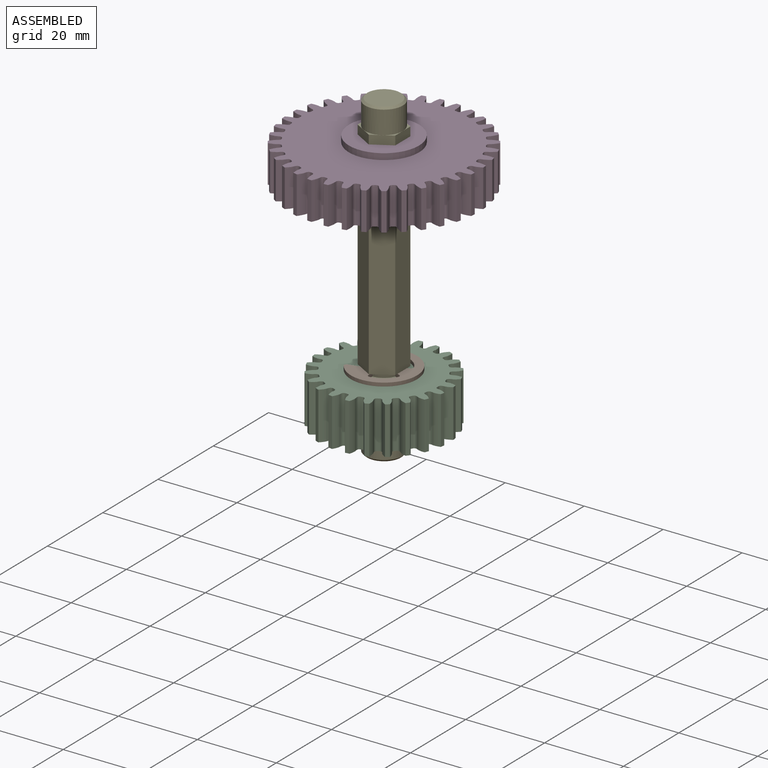
[diagram: assembled view]
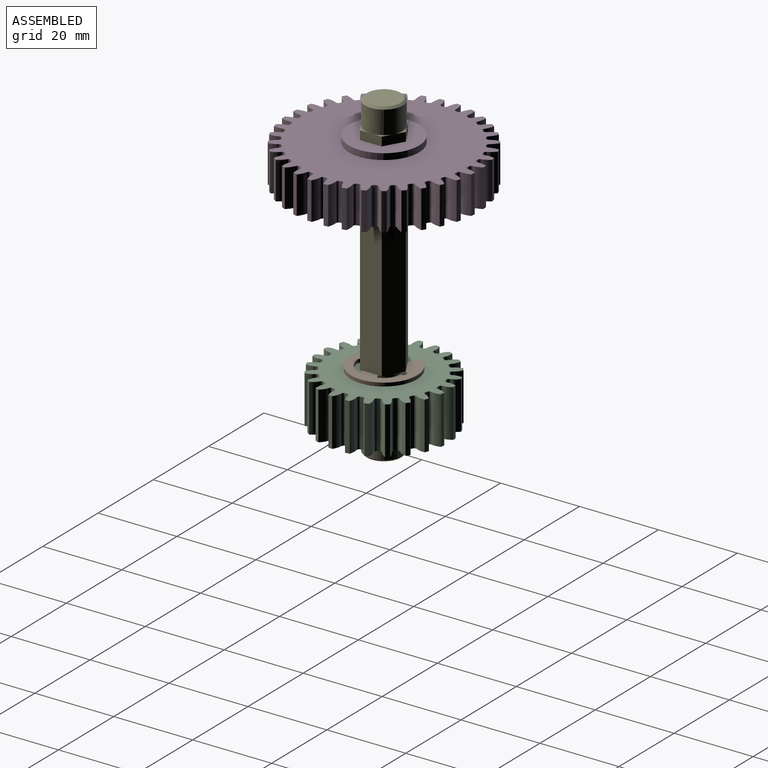
[diagram: assembled view, second angle]
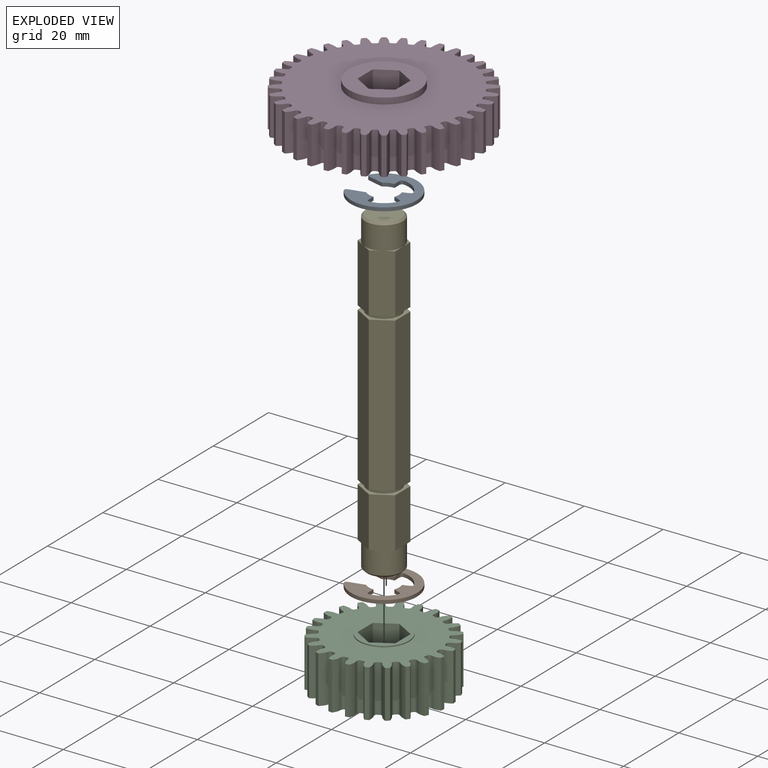
[diagram: exploded view]
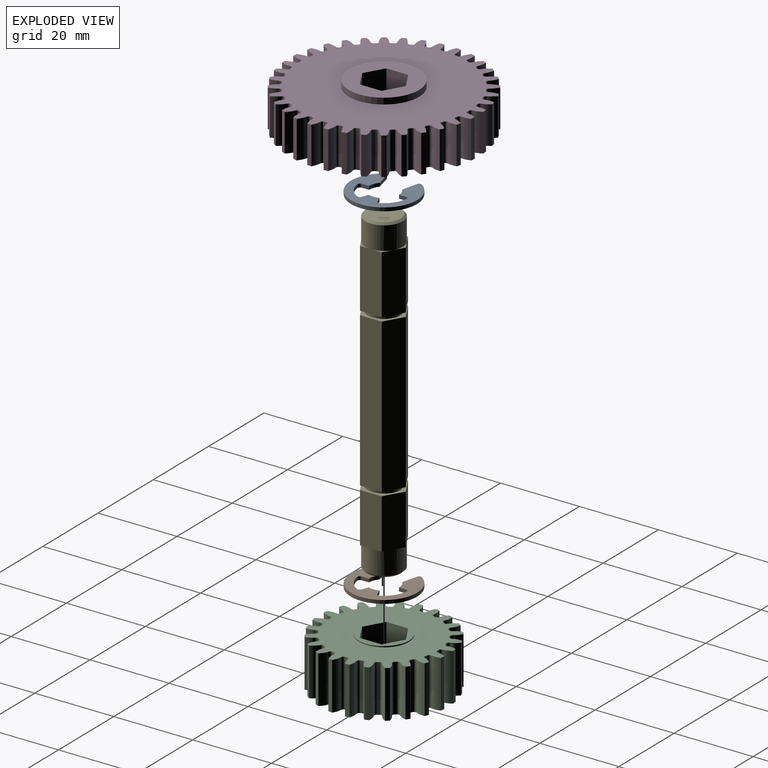
[diagram: exploded view, second angle]
ASSEMBLY  parts=5 mates=4
PART A: 20 faces, bbox 0.9x16.8x15.4 mm
  f0: cylinder r=0.62mm len=0.96mm, axis (-1,0,0), area 1.1mm2, adj f2,f3,f14,f15
  f1: cylinder r=0.62mm len=0.96mm, axis (-1,0,0), area 1.1mm2, adj f2,f13,f14,f15
  f2: cylinder r=8.38mm len=16.76mm, axis (-1,0,0), area 37.7mm2, adj f0,f1,f14,f15
  f3: plane 3.99x0.99mm, normal (0,-0.97,0.24), area 3.7mm2, adj f0,f4,f14,f15
  f4: cylinder r=3.81mm len=2.52mm, axis (-1,0,0), area 2.4mm2, adj f3,f5,f14,f15
  f5: plane 1.83x0.89mm, normal (0,0,-1), area 1.6mm2, adj f4,f14,f15,f17
  f6: cylinder r=6.29mm len=4.92mm, axis (-1,0,0), area 5.5mm2, adj f14,f15,f17,f19
  f7: plane 1.71x0.89mm, normal (0,0.94,0.35), area 1.6mm2, adj f8,f14,f15,f19
  f8: cylinder r=3.81mm len=2.69mm, axis (-1,0,0), area 2.4mm2, adj f7,f9,f14,f15
  f9: plane 1.71x0.89mm, normal (0,-0.94,0.35), area 1.6mm2, adj f8,f14,f15,f18
  f10: cylinder r=6.29mm len=4.92mm, axis (-1,0,0), area 5.5mm2, adj f14,f15,f16,f18
  f11: plane 1.83x0.89mm, normal (0,0,-1), area 1.6mm2, adj f12,f14,f15,f16
  f12: cylinder r=3.81mm len=2.52mm, axis (-1,0,0), area 2.4mm2, adj f11,f13,f14,f15
  f13: plane 3.99x0.99mm, normal (0,0.97,0.24), area 3.7mm2, adj f1,f12,f14,f15
  f14: plane 16.76x15.36mm, normal (1,0,0), area 110.9mm2, adj f0,f1,f2,f3,f4,f5,f6,f7
  f15: plane 16.76x15.36mm, normal (-1,0,0), area 110.9mm2, adj f0,f1,f2,f3,f4,f5,f6,f7
  f16: cylinder r=0.62mm len=0.89mm, axis (-1,0,0), area 0.9mm2, adj f10,f11,f14,f15
  f17: cylinder r=0.62mm len=0.89mm, axis (-1,0,0), area 0.9mm2, adj f5,f6,f14,f15
  f18: cylinder r=0.62mm len=0.89mm, axis (-1,0,0), area 0.9mm2, adj f9,f10,f14,f15
  f19: cylinder r=0.62mm len=0.89mm, axis (-1,0,0), area 0.9mm2, adj f6,f7,f14,f15
PART B: same geometry as A
PART C: 60 faces, bbox 33x12.8x33 mm
  f0: cylinder r=6.35mm len=12.7mm, axis (0,1,0), area 11.7mm2, adj f2,f11
  f1: cylinder r=6.35mm len=12.7mm, axis (0,1,0), area 11.7mm2, adj f3,f10
  f2: plane 12.7x12.7mm, normal (0,1,0), area 46.8mm2, adj f0,f4,f5,f6,f7,f8,f9
  f3: plane 12.7x12.7mm, normal (0,-1,0), area 46.8mm2, adj f1,f4,f5,f6,f7,f8,f9
  f4: plane 12.65x5.54mm, normal (1,0,0), area 70.1mm2, adj f2,f3,f5,f9
  f5: plane 12.65x4.8mm, normal (0.5,0,0.87), area 70.1mm2, adj f2,f3,f4,f6
  f6: plane 12.65x4.8mm, normal (-0.5,0,0.87), area 70.1mm2, adj f2,f3,f5,f7
  f7: plane 12.65x5.54mm, normal (-1,0,0), area 70.1mm2, adj f2,f3,f6,f8
  f8: plane 12.65x4.8mm, normal (-0.5,0,-0.87), area 70.1mm2, adj f2,f3,f7,f9
  f9: plane 12.65x4.8mm, normal (0.5,0,-0.87), area 70.1mm2, adj f2,f3,f4,f8
  f10: plane 32.97x32.97mm, normal (0,-1,0), area 577.9mm2, adj f1,f12,f13,f14,f15,f16,f17,f18
  f11: plane 32.97x32.97mm, normal (0,1,0), area 577.9mm2, adj f0,f12,f13,f14,f15,f16,f17,f18
  f12: cylinder r=16.51mm len=12.07mm, axis (0,-1,0), area 12.6mm2, adj f10,f11,f13,f59
  f13: extruded ~12.07x3.27mm, area 85.3mm2, adj f10,f11,f12,f14
  f14: cylinder r=16.51mm len=12.07mm, axis (0,-1,0), area 12.6mm2, adj f10,f11,f13,f15
  f15: extruded ~12.07x3.19mm, area 85.3mm2, adj f10,f11,f14,f16
  f16: cylinder r=16.51mm len=12.07mm, axis (0,-1,0), area 12.6mm2, adj f10,f11,f15,f17
  f17: extruded ~12.07x3.42mm, area 85.3mm2, adj f10,f11,f16,f18
  f18: cylinder r=16.51mm len=12.07mm, axis (0,-1,0), area 12.6mm2, adj f10,f11,f17,f19
  f19: extruded ~12.07x3.47mm, area 85.3mm2, adj f10,f11,f18,f20
  f20: cylinder r=16.51mm len=12.07mm, axis (0,-1,0), area 12.6mm2, adj f10,f11,f19,f21
  f21: extruded ~12.07x3.42mm, area 85.3mm2, adj f10,f11,f20,f22
  f22: cylinder r=16.51mm len=12.07mm, axis (0,-1,0), area 12.6mm2, adj f10,f11,f21,f23
  f23: extruded ~12.07x3.19mm, area 85.3mm2, adj f10,f11,f22,f24
  f24: cylinder r=16.51mm len=12.07mm, axis (0,-1,0), area 12.6mm2, adj f10,f11,f23,f25
  f25: extruded ~12.07x3.27mm, area 85.3mm2, adj f10,f11,f24,f26
  f26: cylinder r=16.51mm len=12.07mm, axis (0,-1,0), area 12.6mm2, adj f10,f11,f25,f27
  f27: extruded ~12.07x3.19mm, area 85.3mm2, adj f10,f11,f26,f28
  f28: cylinder r=16.51mm len=12.07mm, axis (0,-1,0), area 12.6mm2, adj f10,f11,f27,f29
  f29: extruded ~12.07x3.42mm, area 85.3mm2, adj f10,f11,f28,f30
  f30: cylinder r=16.51mm len=12.07mm, axis (0,-1,0), area 12.6mm2, adj f10,f11,f29,f31
  f31: extruded ~12.07x3.47mm, area 85.3mm2, adj f10,f11,f30,f32
  f32: cylinder r=16.51mm len=12.07mm, axis (0,-1,0), area 12.6mm2, adj f10,f11,f31,f33
  f33: extruded ~12.07x3.42mm, area 85.3mm2, adj f10,f11,f32,f34
  f34: cylinder r=16.51mm len=12.07mm, axis (0,-1,0), area 12.6mm2, adj f10,f11,f33,f35
  f35: extruded ~12.07x3.19mm, area 85.3mm2, adj f10,f11,f34,f36
  f36: cylinder r=16.51mm len=12.07mm, axis (0,-1,0), area 12.6mm2, adj f10,f11,f35,f37
  f37: extruded ~12.07x3.27mm, area 85.3mm2, adj f10,f11,f36,f38
  f38: cylinder r=16.51mm len=12.07mm, axis (0,-1,0), area 12.6mm2, adj f10,f11,f37,f39
  f39: extruded ~12.07x3.19mm, area 85.3mm2, adj f10,f11,f38,f40
  f40: cylinder r=16.51mm len=12.07mm, axis (0,-1,0), area 12.6mm2, adj f10,f11,f39,f41
  f41: extruded ~12.07x3.42mm, area 85.3mm2, adj f10,f11,f40,f42
  f42: cylinder r=16.51mm len=12.07mm, axis (0,-1,0), area 12.6mm2, adj f10,f11,f41,f43
  f43: extruded ~12.07x3.47mm, area 85.3mm2, adj f10,f11,f42,f44
  f44: cylinder r=16.51mm len=12.07mm, axis (0,-1,0), area 12.6mm2, adj f10,f11,f43,f45
  f45: extruded ~12.07x3.42mm, area 85.3mm2, adj f10,f11,f44,f46
  f46: cylinder r=16.51mm len=12.07mm, axis (0,-1,0), area 12.6mm2, adj f10,f11,f45,f47
  f47: extruded ~12.07x3.19mm, area 85.3mm2, adj f10,f11,f46,f48
  f48: cylinder r=16.51mm len=12.07mm, axis (0,-1,0), area 12.6mm2, adj f10,f11,f47,f49
  f49: extruded ~12.07x3.27mm, area 85.3mm2, adj f10,f11,f48,f50
  f50: cylinder r=16.51mm len=12.07mm, axis (0,-1,0), area 12.6mm2, adj f10,f11,f49,f51
  f51: extruded ~12.07x3.19mm, area 85.3mm2, adj f10,f11,f50,f52
  f52: cylinder r=16.51mm len=12.07mm, axis (0,-1,0), area 12.6mm2, adj f10,f11,f51,f53
  f53: extruded ~12.07x3.42mm, area 85.3mm2, adj f10,f11,f52,f54
  f54: cylinder r=16.51mm len=12.07mm, axis (0,-1,0), area 12.6mm2, adj f10,f11,f53,f55
  f55: extruded ~12.07x3.47mm, area 85.3mm2, adj f10,f11,f54,f56
  f56: cylinder r=16.51mm len=12.07mm, axis (0,-1,0), area 12.6mm2, adj f10,f11,f55,f57
  f57: extruded ~12.07x3.42mm, area 85.3mm2, adj f10,f11,f56,f58
  f58: cylinder r=16.51mm len=12.07mm, axis (0,-1,0), area 12.6mm2, adj f10,f11,f57,f59
  f59: extruded ~12.07x3.19mm, area 85.3mm2, adj f10,f11,f12,f58
PART D: 84 faces, bbox 48.2x12.6x48.2 mm
  f0: cylinder r=8.89mm len=17.78mm, axis (0,1,0), area 87.3mm2, adj f2,f77
  f1: cylinder r=8.89mm len=17.78mm, axis (0,1,0), area 87.3mm2, adj f3,f76
  f2: plane 48.16x48.16mm, normal (0,-1,0), area 1368.1mm2, adj f0,f4,f5,f6,f7,f8,f9,f10
  f3: plane 48.16x48.16mm, normal (0,1,0), area 1368.1mm2, adj f1,f4,f5,f6,f7,f8,f9,f10
  f4: cylinder r=24.13mm len=9.53mm, axis (0,1,0), area 10.5mm2, adj f2,f3,f40,f75
  f5: cylinder r=24.13mm len=9.53mm, axis (0,1,0), area 10.5mm2, adj f2,f3,f74,f75
  f6: cylinder r=24.13mm len=9.53mm, axis (0,1,0), area 10.5mm2, adj f2,f3,f73,f74
  f7: cylinder r=24.13mm len=9.53mm, axis (0,1,0), area 10.5mm2, adj f2,f3,f72,f73
  f8: cylinder r=24.13mm len=9.53mm, axis (0,1,0), area 10.5mm2, adj f2,f3,f71,f72
  f9: cylinder r=24.13mm len=9.53mm, axis (0,1,0), area 10.5mm2, adj f2,f3,f70,f71
  f10: cylinder r=24.13mm len=9.53mm, axis (0,1,0), area 10.5mm2, adj f2,f3,f69,f70
  f11: cylinder r=24.13mm len=9.53mm, axis (0,1,0), area 10.5mm2, adj f2,f3,f68,f69
  f12: cylinder r=24.13mm len=9.53mm, axis (0,1,0), area 10.5mm2, adj f2,f3,f67,f68
  f13: cylinder r=24.13mm len=9.53mm, axis (0,1,0), area 10.5mm2, adj f2,f3,f66,f67
  f14: cylinder r=24.13mm len=9.53mm, axis (0,1,0), area 10.5mm2, adj f2,f3,f65,f66
  f15: cylinder r=24.13mm len=9.53mm, axis (0,1,0), area 10.5mm2, adj f2,f3,f64,f65
  f16: cylinder r=24.13mm len=9.53mm, axis (0,1,0), area 10.5mm2, adj f2,f3,f63,f64
  f17: cylinder r=24.13mm len=9.53mm, axis (0,1,0), area 10.5mm2, adj f2,f3,f62,f63
  f18: cylinder r=24.13mm len=9.53mm, axis (0,1,0), area 10.5mm2, adj f2,f3,f61,f62
  f19: cylinder r=24.13mm len=9.53mm, axis (0,1,0), area 10.5mm2, adj f2,f3,f60,f61
  f20: cylinder r=24.13mm len=9.53mm, axis (0,1,0), area 10.5mm2, adj f2,f3,f59,f60
  f21: cylinder r=24.13mm len=9.53mm, axis (0,1,0), area 10.5mm2, adj f2,f3,f58,f59
  f22: cylinder r=24.13mm len=9.53mm, axis (0,1,0), area 10.5mm2, adj f2,f3,f57,f58
  f23: cylinder r=24.13mm len=9.53mm, axis (0,1,0), area 10.5mm2, adj f2,f3,f56,f57
  f24: cylinder r=24.13mm len=9.53mm, axis (0,1,0), area 10.5mm2, adj f2,f3,f55,f56
  f25: cylinder r=24.13mm len=9.53mm, axis (0,1,0), area 10.5mm2, adj f2,f3,f54,f55
  f26: cylinder r=24.13mm len=9.53mm, axis (0,1,0), area 10.5mm2, adj f2,f3,f53,f54
  f27: cylinder r=24.13mm len=9.53mm, axis (0,1,0), area 10.5mm2, adj f2,f3,f52,f53
  f28: cylinder r=24.13mm len=9.53mm, axis (0,1,0), area 10.5mm2, adj f2,f3,f51,f52
  f29: cylinder r=24.13mm len=9.53mm, axis (0,1,0), area 10.5mm2, adj f2,f3,f50,f51
  f30: cylinder r=24.13mm len=9.53mm, axis (0,1,0), area 10.5mm2, adj f2,f3,f49,f50
  f31: cylinder r=24.13mm len=9.53mm, axis (0,1,0), area 10.5mm2, adj f2,f3,f48,f49
  f32: cylinder r=24.13mm len=9.53mm, axis (0,1,0), area 10.5mm2, adj f2,f3,f47,f48
  f33: cylinder r=24.13mm len=9.53mm, axis (0,1,0), area 10.5mm2, adj f2,f3,f46,f47
  f34: cylinder r=24.13mm len=9.53mm, axis (0,1,0), area 10.5mm2, adj f2,f3,f45,f46
  f35: cylinder r=24.13mm len=9.53mm, axis (0,1,0), area 10.5mm2, adj f2,f3,f44,f45
  f36: cylinder r=24.13mm len=9.53mm, axis (0,1,0), area 10.5mm2, adj f2,f3,f43,f44
  f37: cylinder r=24.13mm len=9.53mm, axis (0,1,0), area 10.5mm2, adj f2,f3,f42,f43
  f38: cylinder r=24.13mm len=9.53mm, axis (0,1,0), area 10.5mm2, adj f2,f3,f41,f42
  f39: cylinder r=24.13mm len=9.53mm, axis (0,1,0), area 10.5mm2, adj f2,f3,f40,f41
  f40: extruded ~9.53x3.1mm, area 67mm2, adj f2,f3,f4,f39
  f41: extruded ~9.53x3.08mm, area 67mm2, adj f2,f3,f38,f39
  f42: extruded ~9.53x3.29mm, area 67mm2, adj f2,f3,f37,f38
  f43: extruded ~9.53x3.4mm, area 67mm2, adj f2,f3,f36,f37
  f44: extruded ~9.53x3.45mm, area 67mm2, adj f2,f3,f35,f36
  f45: extruded ~9.53x3.45mm, area 67mm2, adj f2,f3,f34,f35
  f46: extruded ~9.53x3.4mm, area 67mm2, adj f2,f3,f33,f34
  f47: extruded ~9.53x3.29mm, area 67mm2, adj f2,f3,f32,f33
  f48: extruded ~9.53x3.08mm, area 67mm2, adj f2,f3,f31,f32
  f49: extruded ~9.53x3.1mm, area 67mm2, adj f2,f3,f30,f31
  f50: extruded ~9.53x3.08mm, area 67mm2, adj f2,f3,f29,f30
  f51: extruded ~9.53x3.29mm, area 67mm2, adj f2,f3,f28,f29
  f52: extruded ~9.53x3.4mm, area 67mm2, adj f2,f3,f27,f28
  f53: extruded ~9.53x3.45mm, area 67mm2, adj f2,f3,f26,f27
  f54: extruded ~9.53x3.45mm, area 67mm2, adj f2,f3,f25,f26
  f55: extruded ~9.53x3.4mm, area 67mm2, adj f2,f3,f24,f25
  f56: extruded ~9.53x3.29mm, area 67mm2, adj f2,f3,f23,f24
  f57: extruded ~9.53x3.08mm, area 67mm2, adj f2,f3,f22,f23
  f58: extruded ~9.53x3.1mm, area 67mm2, adj f2,f3,f21,f22
  f59: extruded ~9.53x3.08mm, area 67mm2, adj f2,f3,f20,f21
  f60: extruded ~9.53x3.29mm, area 67mm2, adj f2,f3,f19,f20
  f61: extruded ~9.53x3.4mm, area 67mm2, adj f2,f3,f18,f19
  f62: extruded ~9.53x3.45mm, area 67mm2, adj f2,f3,f17,f18
  f63: extruded ~9.53x3.45mm, area 67mm2, adj f2,f3,f16,f17
  f64: extruded ~9.53x3.4mm, area 67mm2, adj f2,f3,f15,f16
  f65: extruded ~9.53x3.29mm, area 67mm2, adj f2,f3,f14,f15
  f66: extruded ~9.53x3.08mm, area 67mm2, adj f2,f3,f13,f14
  f67: extruded ~9.53x3.1mm, area 67mm2, adj f2,f3,f12,f13
  f68: extruded ~9.53x3.08mm, area 67mm2, adj f2,f3,f11,f12
  f69: extruded ~9.53x3.29mm, area 67mm2, adj f2,f3,f10,f11
  f70: extruded ~9.53x3.4mm, area 67mm2, adj f2,f3,f9,f10
  f71: extruded ~9.53x3.45mm, area 67mm2, adj f2,f3,f8,f9
  f72: extruded ~9.53x3.45mm, area 67mm2, adj f2,f3,f7,f8
  f73: extruded ~9.53x3.4mm, area 67mm2, adj f2,f3,f6,f7
  f74: extruded ~9.53x3.29mm, area 67mm2, adj f2,f3,f5,f6
  f75: extruded ~9.53x3.08mm, area 67mm2, adj f2,f3,f4,f5
  f76: plane 17.78x17.78mm, normal (0,1,0), area 168.5mm2, adj f1,f78,f79,f80,f81,f82,f83
  f77: plane 17.78x17.78mm, normal (0,-1,0), area 168.5mm2, adj f0,f78,f79,f80,f81,f82,f83
  f78: plane 12.65x4.8mm, normal (-0.5,0,0.87), area 70.1mm2, adj f76,f77,f79,f83
  f79: plane 12.65x4.8mm, normal (0.5,0,0.87), area 70.1mm2, adj f76,f77,f78,f80
  f80: plane 12.65x5.54mm, normal (1,0,0), area 70.1mm2, adj f76,f77,f79,f81
  f81: plane 12.65x4.8mm, normal (0.5,0,-0.87), area 70.1mm2, adj f76,f77,f80,f82
  f82: plane 12.65x4.8mm, normal (-0.5,0,-0.87), area 70.1mm2, adj f76,f77,f81,f83
  f83: plane 12.65x5.54mm, normal (-1,0,0), area 70.1mm2, adj f76,f77,f78,f82
PART E: 42 faces, bbox 11x9.5x81.3 mm
  f0: plane 38.99x4.76mm, normal (0.87,0.5,0), area 214.4mm2, adj f1,f5,f21,f24
  f1: plane 38.99x4.76mm, normal (0.87,-0.5,0), area 214.4mm2, adj f0,f2,f21,f24
  f2: plane 38.99x5.5mm, normal (0,-1,0), area 214.4mm2, adj f1,f3,f21,f24
  f3: plane 38.99x4.76mm, normal (-0.87,-0.5,0), area 214.4mm2, adj f2,f4,f21,f24
  f4: plane 38.99x4.76mm, normal (-0.87,0.5,0), area 214.4mm2, adj f3,f5,f21,f24
  f5: plane 38.99x5.5mm, normal (0,1,0), area 214.4mm2, adj f0,f4,f21,f24
  f6: plane 4.12x2.38mm, normal (0,0,1), area 1.2mm2, adj f11,f16,f18
  f7: plane 4.12x2.38mm, normal (0,0,1), area 1.2mm2, adj f11,f12,f18
  f8: plane 4.76x1.38mm, normal (0,0,1), area 1.2mm2, adj f12,f13,f18
  f9: plane 4.12x2.38mm, normal (0,0,1), area 1.2mm2, adj f13,f14,f18
  f10: plane 4.12x2.38mm, normal (0,0,1), area 1.2mm2, adj f14,f15,f18
  f11: plane 14.86x5.5mm, normal (0,1,0), area 81.7mm2, adj f6,f7,f12,f16,f22
  f12: plane 14.86x4.76mm, normal (-0.87,0.5,0), area 81.7mm2, adj f7,f8,f11,f13,f22
  f13: plane 14.86x4.76mm, normal (-0.87,-0.5,0), area 81.7mm2, adj f8,f9,f12,f14,f22
  f14: plane 14.86x5.5mm, normal (0,-1,0), area 81.7mm2, adj f9,f10,f13,f15,f22
  f15: plane 14.86x4.76mm, normal (0.87,-0.5,0), area 81.7mm2, adj f10,f14,f16,f17,f22
  f16: plane 14.86x4.76mm, normal (0.87,0.5,0), area 81.7mm2, adj f6,f11,f15,f17,f22
  f17: plane 4.76x1.38mm, normal (0,0,1), area 1.2mm2, adj f15,f16,f18
  f18: cylinder r=4.76mm len=9.53mm, axis (0,0,-1), area 174.8mm2, adj f6,f7,f8,f9,f10,f17,f40
  f19: plane 8.51x8.51mm, normal (0,0,1), area 56.9mm2, adj f40
  f20: cylinder r=4.13mm len=8.26mm, axis (0,0,1), area 26.3mm2, adj f21,f22
  f21: plane 11x9.53mm, normal (0,0,1), area 25mm2, adj f0,f1,f2,f3,f4,f5,f20
  f22: plane 11x9.53mm, normal (0,0,-1), area 25mm2, adj f11,f12,f13,f14,f15,f16,f20
  f23: cylinder r=4.13mm len=8.26mm, axis (0,0,-1), area 26.3mm2, adj f24,f25
  f24: plane 11x9.53mm, normal (0,0,-1), area 25mm2, adj f0,f1,f2,f3,f4,f5,f23
  f25: plane 11x9.53mm, normal (0,0,1), area 25mm2, adj f23,f34,f35,f36,f37,f38,f39
  f26: plane 8.51x8.51mm, normal (0,0,-1), area 56.9mm2, adj f41
  f27: cylinder r=4.76mm len=9.53mm, axis (0,0,-1), area 174.8mm2, adj f28,f29,f30,f31,f32,f33,f41
  f28: plane 4.76x1.38mm, normal (0,0,-1), area 1.2mm2, adj f27,f38,f39
  f29: plane 4.12x2.38mm, normal (0,0,-1), area 1.2mm2, adj f27,f37,f38
  f30: plane 4.12x2.38mm, normal (0,0,-1), area 1.2mm2, adj f27,f36,f37
  f31: plane 4.76x1.38mm, normal (0,0,-1), area 1.2mm2, adj f27,f35,f36
  f32: plane 4.12x2.38mm, normal (0,0,-1), area 1.2mm2, adj f27,f34,f35
  f33: plane 4.12x2.38mm, normal (0,0,-1), area 1.2mm2, adj f27,f34,f39
  f34: plane 12.7x5.5mm, normal (0,1,0), area 69.8mm2, adj f25,f32,f33,f35,f39
  f35: plane 12.7x4.76mm, normal (-0.87,0.5,0), area 69.8mm2, adj f25,f31,f32,f34,f36
  f36: plane 12.7x4.76mm, normal (-0.87,-0.5,0), area 69.8mm2, adj f25,f30,f31,f35,f37
  f37: plane 12.7x5.5mm, normal (0,-1,0), area 69.8mm2, adj f25,f29,f30,f36,f38
  f38: plane 12.7x4.76mm, normal (0.87,-0.5,0), area 69.8mm2, adj f25,f28,f29,f37,f39
  f39: plane 12.7x4.76mm, normal (0.87,0.5,0), area 69.8mm2, adj f25,f28,f33,f34,f38
  f40: cone r=4.25mm half-angle=45deg, axis (0,0,-1), area 20.4mm2, adj f18,f19
  f41: cone r=4.76mm half-angle=45deg, axis (0,0,1), area 20.4mm2, adj f26,f27
PLACE A rot(axis=(0,-1,0),90deg) t=(-0.7,0,0)mm
PLACE B rot(axis=(0,-1,0),90deg) t=(-0.7,0,-40.13)mm
PLACE C rot(axis=(0,-0.71,-0.71),180deg) t=(-0.7,0,-46.9)mm
PLACE D rot(axis=(0,0.71,0.71),180deg) t=(-0.7,0,6.77)mm
PLACE E rot(axis=(0,0,-1),90deg) t=(-0.7,0,-59.63)mm
MATE fastened A.f2 <-> D.f0  axis (0,0,1) through (-0.7,0,0.44)mm
MATE fastened B.f2 <-> E.f23  axis (0,0,-1) through (-0.7,0,-40.58)mm
MATE fastened B.f2 <-> C.f0  axis (0,0,-1) through (-0.7,0,-40.58)mm
MATE fastened E.f20 <-> A.f2  axis (0,0,-1) through (-0.7,0,0.44)mm
